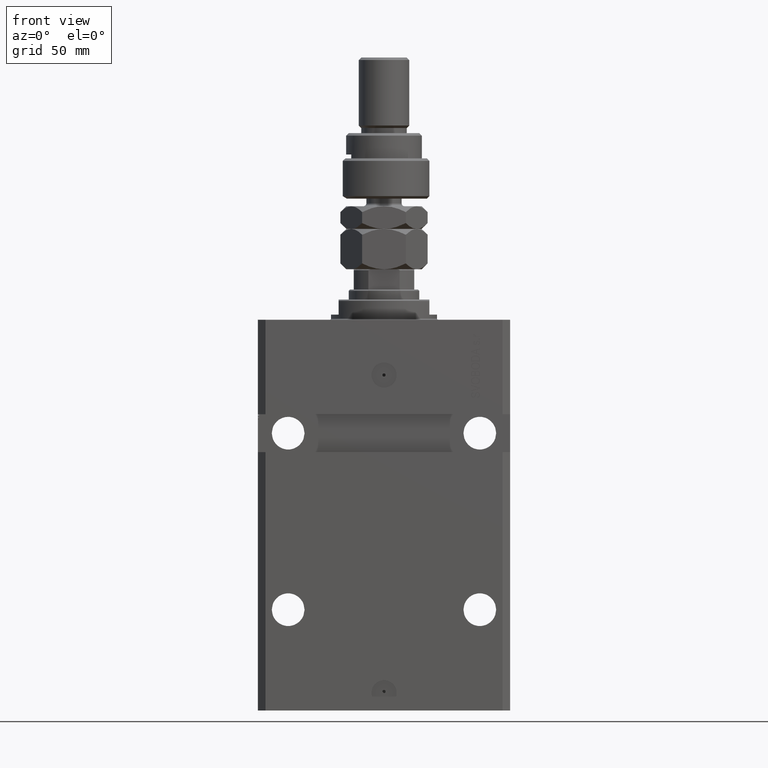
[diagram: clean part render]
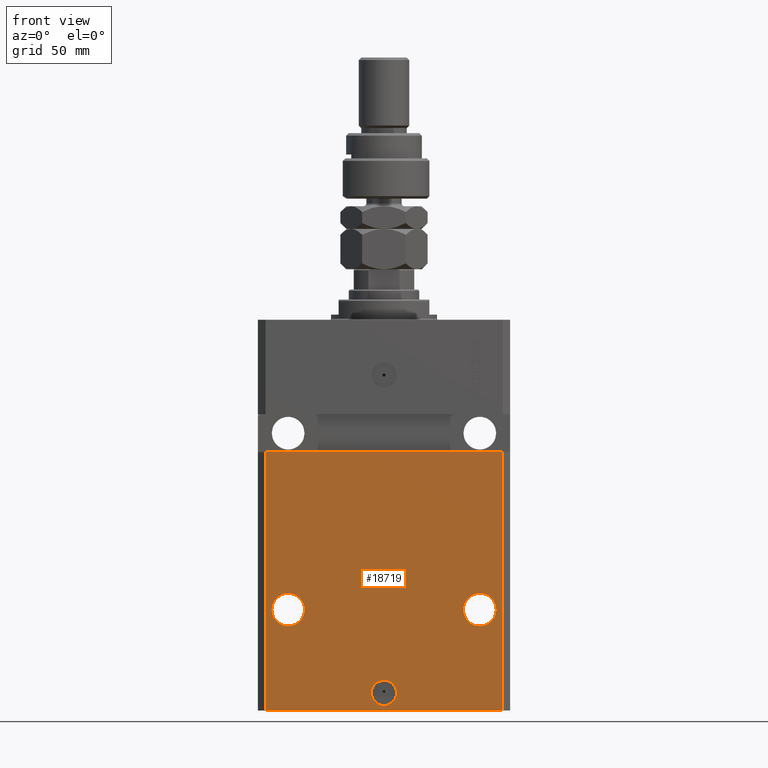
[diagram: same view with one face highlighted and labeled with its STEP entity id]
A machine part, front view. The second image highlights one B-rep face of the part: STEP entity #18719.
In plain terms, the highlighted planar face has unit normal (-0, -1, 0).
Its self-contained STEP definition (entity closure, byte-faithful):
#148 = EDGE_CURVE ( 'NONE', #26908, #22109, #24611, .T. ) ;
#430 = EDGE_LOOP ( 'NONE', ( #37822, #49688 ) ) ;
#1412 = LINE ( 'NONE', #13270, #43133 ) ;
#1456 = DIRECTION ( 'NONE',  ( 1.000000000000000000, 0.000000000000000000, 0.000000000000000000 ) ) ;
#2427 = FACE_BOUND ( 'NONE', #5017, .T. ) ;
#2680 = PLANE ( 'NONE',  #44192 ) ;
#3727 = ORIENTED_EDGE ( 'NONE', *, *, #11665, .F. ) ;
#3820 = VERTEX_POINT ( 'NONE', #46374 ) ;
#3925 = AXIS2_PLACEMENT_3D ( 'NONE', #19496, #35240, #7122 ) ;
#4015 = ORIENTED_EDGE ( 'NONE', *, *, #148, .T. ) ;
#5017 = EDGE_LOOP ( 'NONE', ( #23610, #21756 ) ) ;
#5028 = EDGE_CURVE ( 'NONE', #40475, #44816, #20950, .T. ) ;
#5818 = DIRECTION ( 'NONE',  ( 1.176083712526788232E-16, -1.000000000000000000, 0.000000000000000000 ) ) ;
#6782 = VECTOR ( 'NONE', #23601, 1000.000000000000000 ) ;
#7122 = DIRECTION ( 'NONE',  ( 1.000000000000000000, 0.000000000000000000, 0.000000000000000000 ) ) ;
#7274 = VECTOR ( 'NONE', #42842, 1000.000000000000000 ) ;
#9155 = EDGE_CURVE ( 'NONE', #27571, #3820, #1412, .T. ) ;
#10161 = DIRECTION ( 'NONE',  ( -1.476360405086644309E-16, -1.000000000000000000, 0.000000000000000000 ) ) ;
#10666 = DIRECTION ( 'NONE',  ( 1.000000000000000000, -1.476360405086644309E-16, 0.000000000000000000 ) ) ;
#11613 = DIRECTION ( 'NONE',  ( 1.176083712526788232E-16, -1.000000000000000000, 0.000000000000000000 ) ) ;
#11665 = EDGE_CURVE ( 'NONE', #16725, #30680, #19331, .T. ) ;
#12241 = CARTESIAN_POINT ( 'NONE',  ( 44.50000000000001421, -37.49999999999999289, -115.0000000000000000 ) ) ;
#12627 = CARTESIAN_POINT ( 'NONE',  ( 5.000000000000000888, -37.50000000000000000, -148.0000000000000000 ) ) ;
#12756 = CARTESIAN_POINT ( 'NONE',  ( -38.00000000000002842, -37.50000000000000711, -115.0000000000000000 ) ) ;
#13270 = CARTESIAN_POINT ( 'NONE',  ( -50.00000000000002842, -37.50000000000000711, -52.50000000000000000 ) ) ;
#15295 = CARTESIAN_POINT ( 'NONE',  ( -47.00000000000000000, -37.49999999999999289, -155.0000000000000000 ) ) ;
#15613 = CARTESIAN_POINT ( 'NONE',  ( -47.00000000000000000, -37.49999999999999289, -155.0000000000000000 ) ) ;
#15825 = CARTESIAN_POINT ( 'NONE',  ( 47.00000000000000000, -37.50000000000000711, -155.0000000000000000 ) ) ;
#16725 = VERTEX_POINT ( 'NONE', #12241 ) ;
#18195 = VERTEX_POINT ( 'NONE', #12627 ) ;
#18264 = AXIS2_PLACEMENT_3D ( 'NONE', #23988, #11613, #24239 ) ;
#18719 = ADVANCED_FACE ( 'NONE', ( #2427, #45274, #37770, #22265 ), #2680, .T. ) ;
#18938 = CARTESIAN_POINT ( 'NONE',  ( -44.50000000000002842, -37.50000000000000711, -115.0000000000000000 ) ) ;
#19331 = CIRCLE ( 'NONE', #45713, 6.499999999999999112 ) ;
#19496 = CARTESIAN_POINT ( 'NONE',  ( -5.536351519074916863E-15, -37.50000000000000000, -148.0000000000000000 ) ) ;
#20502 = DIRECTION ( 'NONE',  ( 1.176083712526788232E-16, -1.000000000000000000, 0.000000000000000000 ) ) ;
#20793 = EDGE_CURVE ( 'NONE', #18195, #21093, #37694, .T. ) ;
#20867 = EDGE_CURVE ( 'NONE', #44816, #40475, #21216, .T. ) ;
#20950 = CIRCLE ( 'NONE', #49817, 6.499999999999999112 ) ;
#21093 = VERTEX_POINT ( 'NONE', #49919 ) ;
#21216 = CIRCLE ( 'NONE', #38538, 6.499999999999999112 ) ;
#21756 = ORIENTED_EDGE ( 'NONE', *, *, #47008, .F. ) ;
#22015 = CARTESIAN_POINT ( 'NONE',  ( -47.00000000000000000, -37.49999999999999289, -155.0000000000000000 ) ) ;
#22109 = VERTEX_POINT ( 'NONE', #15825 ) ;
#22265 = FACE_OUTER_BOUND ( 'NONE', #46283, .T. ) ;
#22418 = AXIS2_PLACEMENT_3D ( 'NONE', #29038, #37313, #1456 ) ;
#23371 = ORIENTED_EDGE ( 'NONE', *, *, #24869, .F. ) ;
#23601 = DIRECTION ( 'NONE',  ( 1.000000000000000000, -1.476360405086644309E-16, 0.000000000000000000 ) ) ;
#23610 = ORIENTED_EDGE ( 'NONE', *, *, #20793, .F. ) ;
#23917 = CARTESIAN_POINT ( 'NONE',  ( 47.00000000000000000, -37.50000000000000711, -155.0000000000000000 ) ) ;
#23988 = CARTESIAN_POINT ( 'NONE',  ( -5.536351519074916863E-15, -37.50000000000000000, -148.0000000000000000 ) ) ;
#24239 = DIRECTION ( 'NONE',  ( 1.000000000000000000, 0.000000000000000000, 0.000000000000000000 ) ) ;
#24611 = LINE ( 'NONE', #15613, #6782 ) ;
#24869 = EDGE_CURVE ( 'NONE', #26908, #27571, #27332, .T. ) ;
#26504 = CIRCLE ( 'NONE', #18264, 5.000000000000006217 ) ;
#26536 = ORIENTED_EDGE ( 'NONE', *, *, #39989, .T. ) ;
#26602 = CARTESIAN_POINT ( 'NONE',  ( -31.50000000000002842, -37.50000000000000711, -115.0000000000000000 ) ) ;
#26612 = DIRECTION ( 'NONE',  ( 1.176083712526788232E-16, -1.000000000000000000, 0.000000000000000000 ) ) ;
#26908 = VERTEX_POINT ( 'NONE', #15295 ) ;
#27332 = LINE ( 'NONE', #35098, #7274 ) ;
#27571 = VERTEX_POINT ( 'NONE', #42887 ) ;
#29038 = CARTESIAN_POINT ( 'NONE',  ( 38.00000000000001421, -37.49999999999999289, -115.0000000000000000 ) ) ;
#29043 = ORIENTED_EDGE ( 'NONE', *, *, #48241, .F. ) ;
#30055 = EDGE_LOOP ( 'NONE', ( #3727, #29043 ) ) ;
#30680 = VERTEX_POINT ( 'NONE', #37864 ) ;
#32122 = VECTOR ( 'NONE', #39677, 1000.000000000000000 ) ;
#32913 = DIRECTION ( 'NONE',  ( -1.000000000000000000, 0.000000000000000000, 0.000000000000000000 ) ) ;
#35098 = CARTESIAN_POINT ( 'NONE',  ( -47.00000000000000000, -37.49999999999999289, -155.0000000000000000 ) ) ;
#35240 = DIRECTION ( 'NONE',  ( 1.176083712526788232E-16, -1.000000000000000000, 0.000000000000000000 ) ) ;
#37313 = DIRECTION ( 'NONE',  ( 1.176083712526788232E-16, -1.000000000000000000, 0.000000000000000000 ) ) ;
#37694 = CIRCLE ( 'NONE', #3925, 5.000000000000006217 ) ;
#37770 = FACE_BOUND ( 'NONE', #430, .T. ) ;
#37776 = DIRECTION ( 'NONE',  ( 1.000000000000000000, 1.387778780781445182E-16, 1.387778780781445182E-16 ) ) ;
#37822 = ORIENTED_EDGE ( 'NONE', *, *, #20867, .F. ) ;
#37864 = CARTESIAN_POINT ( 'NONE',  ( 31.50000000000001421, -37.49999999999999289, -115.0000000000000000 ) ) ;
#38538 = AXIS2_PLACEMENT_3D ( 'NONE', #12756, #20502, #40366 ) ;
#39164 = LINE ( 'NONE', #23917, #32122 ) ;
#39677 = DIRECTION ( 'NONE',  ( 0.000000000000000000, 0.000000000000000000, 1.000000000000000000 ) ) ;
#39989 = EDGE_CURVE ( 'NONE', #22109, #3820, #39164, .T. ) ;
#40366 = DIRECTION ( 'NONE',  ( -1.000000000000000000, 0.000000000000000000, 0.000000000000000000 ) ) ;
#40475 = VERTEX_POINT ( 'NONE', #18938 ) ;
#40884 = ORIENTED_EDGE ( 'NONE', *, *, #9155, .F. ) ;
#42842 = DIRECTION ( 'NONE',  ( 0.000000000000000000, 0.000000000000000000, 1.000000000000000000 ) ) ;
#42887 = CARTESIAN_POINT ( 'NONE',  ( -46.99999999999998579, -37.50000000000000711, -52.50000000000000000 ) ) ;
#43133 = VECTOR ( 'NONE', #37776, 1000.000000000000000 ) ;
#44192 = AXIS2_PLACEMENT_3D ( 'NONE', #22015, #10161, #10666 ) ;
#44686 = CIRCLE ( 'NONE', #22418, 6.499999999999999112 ) ;
#44816 = VERTEX_POINT ( 'NONE', #26602 ) ;
#45047 = CARTESIAN_POINT ( 'NONE',  ( -38.00000000000002842, -37.50000000000000711, -115.0000000000000000 ) ) ;
#45274 = FACE_BOUND ( 'NONE', #30055, .T. ) ;
#45713 = AXIS2_PLACEMENT_3D ( 'NONE', #46512, #26612, #50381 ) ;
#46283 = EDGE_LOOP ( 'NONE', ( #40884, #23371, #4015, #26536 ) ) ;
#46374 = CARTESIAN_POINT ( 'NONE',  ( 47.00000000000000000, -37.49999999999999289, -52.49999999999998579 ) ) ;
#46512 = CARTESIAN_POINT ( 'NONE',  ( 38.00000000000001421, -37.49999999999999289, -115.0000000000000000 ) ) ;
#47008 = EDGE_CURVE ( 'NONE', #21093, #18195, #26504, .T. ) ;
#48241 = EDGE_CURVE ( 'NONE', #30680, #16725, #44686, .T. ) ;
#49688 = ORIENTED_EDGE ( 'NONE', *, *, #5028, .F. ) ;
#49817 = AXIS2_PLACEMENT_3D ( 'NONE', #45047, #5818, #32913 ) ;
#49919 = CARTESIAN_POINT ( 'NONE',  ( -5.000000000000011546, -37.50000000000000000, -148.0000000000000000 ) ) ;
#50381 = DIRECTION ( 'NONE',  ( 1.000000000000000000, 0.000000000000000000, 0.000000000000000000 ) ) ;